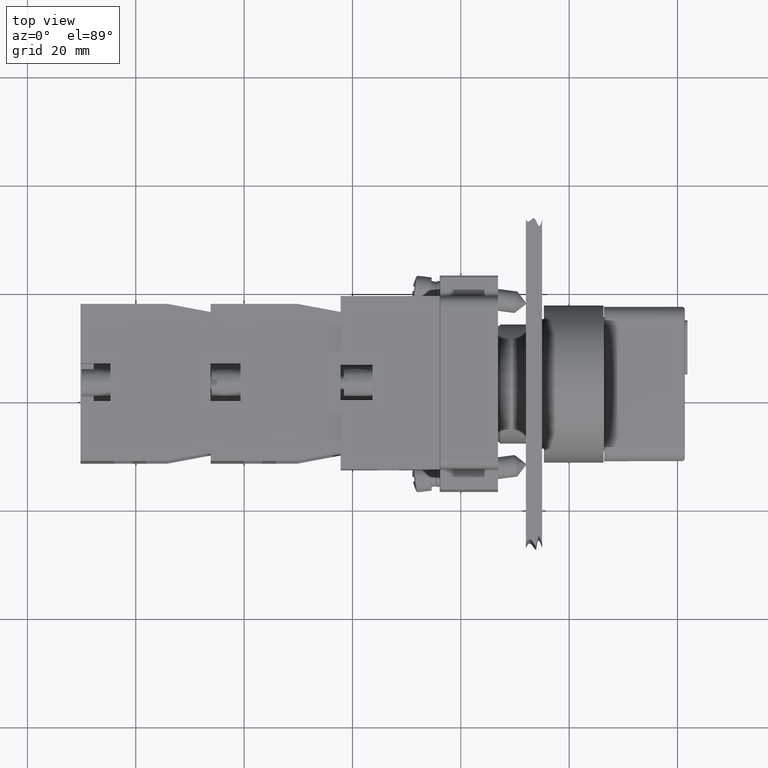
[diagram: clean part render]
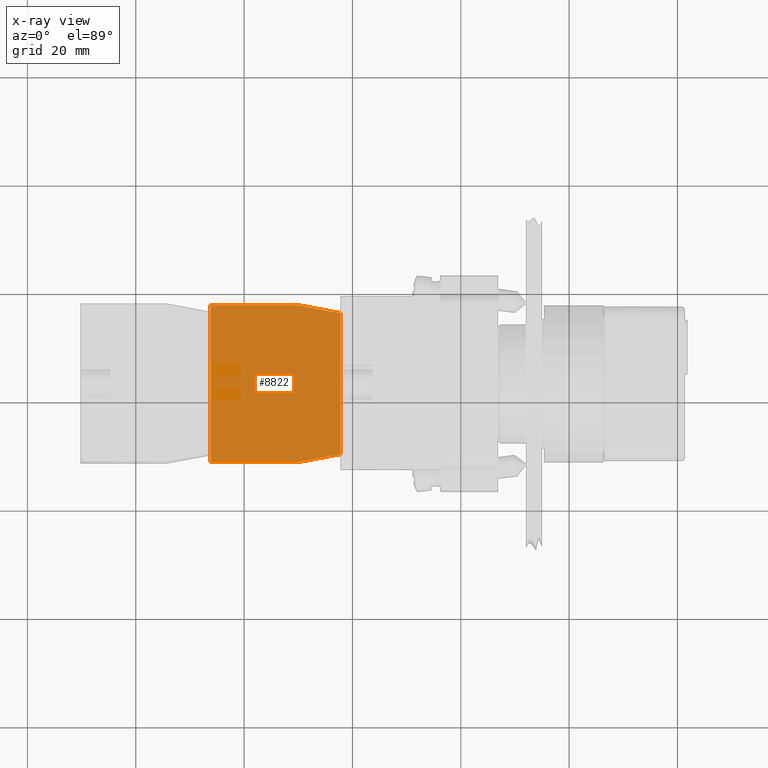
[diagram: x-ray — body ghosted, one internal face saturated and labeled with its STEP entity id]
A machine part, top view, then the same camera in x-ray: the body is ghosted and one INTERNAL B-rep face — a face not visible from any outside direction — is saturated and labeled: STEP entity #8822.
In plain terms, the highlighted planar face has unit normal (0, -0, -1).
Its self-contained STEP definition (entity closure, byte-faithful):
#7127=CARTESIAN_POINT('',(-44.936741828918471,23.797073323279623,0.0));
#7128=VERTEX_POINT('',#7127);
#7135=CARTESIAN_POINT('',(-44.936741828918457,7.797073323279626,0.0));
#7136=VERTEX_POINT('',#7135);
#7137=CARTESIAN_POINT('',(-44.936741828918457,7.797073323279626,0.0));
#7138=DIRECTION('',(0.0,1.0,0.0));
#7139=VECTOR('',#7138,15.999999999999996);
#7140=LINE('',#7137,#7139);
#7141=EDGE_CURVE('',#7136,#7128,#7140,.T.);
#7318=CARTESIAN_POINT('',(-43.436741828918457,-0.202926676720380,0.0));
#7319=VERTEX_POINT('',#7318);
#7326=CARTESIAN_POINT('',(-17.436741828918457,-0.202926676720377,0.0));
#7327=VERTEX_POINT('',#7326);
#7328=CARTESIAN_POINT('',(-17.436741828918457,-0.202926676720377,0.0));
#7329=DIRECTION('',(-1.0,0.0,0.0));
#7330=VECTOR('',#7329,26.0);
#7331=LINE('',#7328,#7330);
#7332=EDGE_CURVE('',#7327,#7319,#7331,.T.);
#8676=CARTESIAN_POINT('',(-15.936741828918466,23.797073323279626,0.0));
#8677=VERTEX_POINT('',#8676);
#8684=CARTESIAN_POINT('',(-44.936741828918471,23.797073323279623,0.0));
#8685=DIRECTION('',(1.0,0.0,0.0));
#8686=VECTOR('',#8685,29.000000000000007);
#8687=LINE('',#8684,#8686);
#8688=EDGE_CURVE('',#7128,#8677,#8687,.T.);
#8724=CARTESIAN_POINT('',(-15.936741828918466,7.797073323279626,0.0));
#8725=VERTEX_POINT('',#8724);
#8732=CARTESIAN_POINT('',(-15.936741828918466,23.797073323279626,0.0));
#8733=DIRECTION('',(0.0,-1.0,0.0));
#8734=VECTOR('',#8733,16.0);
#8735=LINE('',#8732,#8734);
#8736=EDGE_CURVE('',#8677,#8725,#8735,.T.);
#8764=CARTESIAN_POINT('',(-15.936741828918466,7.797073323279626,0.0));
#8765=DIRECTION('',(-0.184288535050184,-0.982872186934322,0.0));
#8766=VECTOR('',#8765,8.139410298049855);
#8767=LINE('',#8764,#8766);
#8768=EDGE_CURVE('',#8725,#7327,#8767,.T.);
#8781=CARTESIAN_POINT('',(-43.436741828918457,-0.202926676720380,0.0));
#8782=DIRECTION('',(-0.184288535050185,0.982872186934322,0.0));
#8783=VECTOR('',#8782,8.139410298049860);
#8784=LINE('',#8781,#8783);
#8785=EDGE_CURVE('',#7319,#7136,#8784,.T.);
#8809=CARTESIAN_POINT('',(-30.436741828918464,12.124046801833057,0.0));
#8810=DIRECTION('',(0.0,0.0,1.0));
#8811=DIRECTION('',(1.0,0.0,0.0));
#8812=AXIS2_PLACEMENT_3D('',#8809,#8810,#8811);
#8813=PLANE('',#8812);
#8814=ORIENTED_EDGE('',*,*,#8688,.T.);
#8815=ORIENTED_EDGE('',*,*,#8736,.T.);
#8816=ORIENTED_EDGE('',*,*,#8768,.T.);
#8817=ORIENTED_EDGE('',*,*,#7332,.T.);
#8818=ORIENTED_EDGE('',*,*,#8785,.T.);
#8819=ORIENTED_EDGE('',*,*,#7141,.T.);
#8820=EDGE_LOOP('',(#8814,#8815,#8816,#8817,#8818,#8819));
#8821=FACE_OUTER_BOUND('',#8820,.T.);
#8822=ADVANCED_FACE('',(#8821),#8813,.F.);